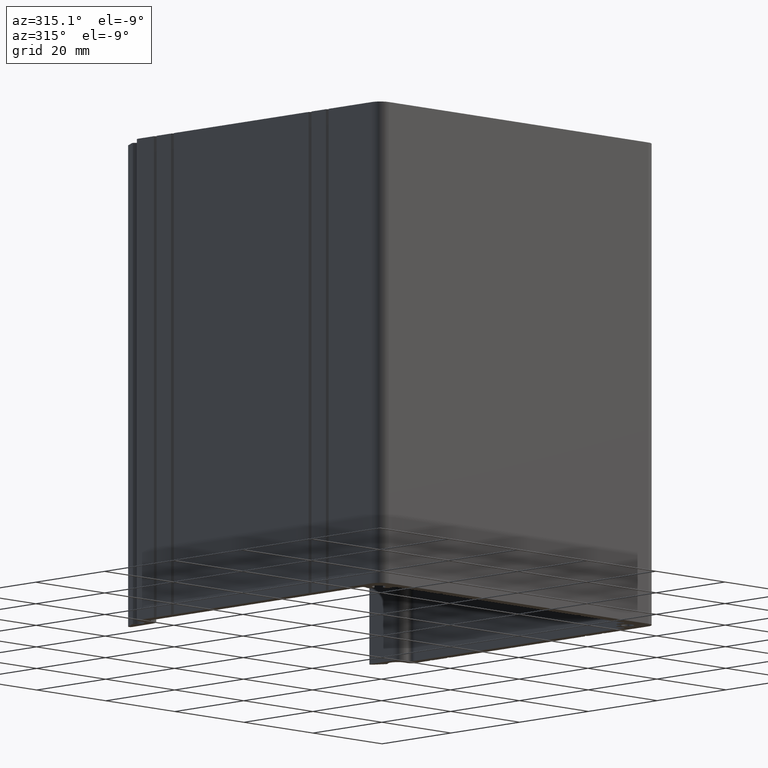
[diagram: clean part render]
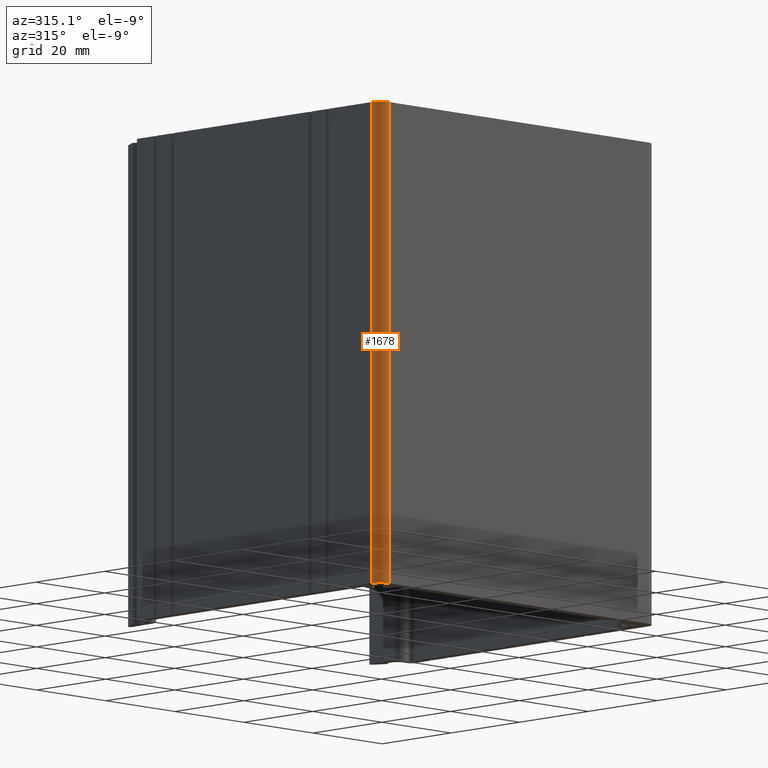
[diagram: same view with one face highlighted and labeled with its STEP entity id]
A machine part, auxiliary view. The second image highlights one B-rep face of the part: STEP entity #1678.
In plain terms, the highlighted cylindrical surface (edge-blend (fillet) strip) has radius 2.5 mm, axis along (0, 0, 1).
Its self-contained STEP definition (entity closure, byte-faithful):
#15=CIRCLE('',#1790,2.5);
#16=CIRCLE('',#1791,2.5);
#79=CYLINDRICAL_SURFACE('',#1789,2.5);
#112=FACE_OUTER_BOUND('',#200,.T.);
#200=EDGE_LOOP('',(#1109,#1110,#1111,#1112));
#290=LINE('',#2449,#484);
#291=LINE('',#2455,#485);
#484=VECTOR('',#1947,10.);
#485=VECTOR('',#1954,10.);
#675=VERTEX_POINT('',#2442);
#678=VERTEX_POINT('',#2447);
#679=VERTEX_POINT('',#2451);
#680=VERTEX_POINT('',#2453);
#850=EDGE_CURVE('',#675,#678,#290,.T.);
#851=EDGE_CURVE('',#679,#675,#15,.T.);
#852=EDGE_CURVE('',#680,#678,#16,.T.);
#853=EDGE_CURVE('',#679,#680,#291,.T.);
#1109=ORIENTED_EDGE('',*,*,#851,.T.);
#1110=ORIENTED_EDGE('',*,*,#850,.T.);
#1111=ORIENTED_EDGE('',*,*,#852,.F.);
#1112=ORIENTED_EDGE('',*,*,#853,.F.);
#1678=ADVANCED_FACE('',(#112),#79,.T.);
#1789=AXIS2_PLACEMENT_3D('',#2450,#1948,#1949);
#1790=AXIS2_PLACEMENT_3D('',#2452,#1950,#1951);
#1791=AXIS2_PLACEMENT_3D('',#2454,#1952,#1953);
#1947=DIRECTION('',(0.,0.,1.));
#1948=DIRECTION('center_axis',(0.,0.,1.));
#1949=DIRECTION('ref_axis',(-1.,-3.5527136788005E-14,0.));
#1950=DIRECTION('center_axis',(0.,0.,1.));
#1951=DIRECTION('ref_axis',(-1.,-3.5527136788005E-14,0.));
#1952=DIRECTION('center_axis',(0.,0.,1.));
#1953=DIRECTION('ref_axis',(-1.,-3.5527136788005E-14,0.));
#1954=DIRECTION('',(0.,0.,1.));
#2442=CARTESIAN_POINT('',(-37.5357959715203,8.88178419700125E-15,0.));
#2447=CARTESIAN_POINT('',(-37.5357959715203,8.88178419700125E-15,100.));
#2449=CARTESIAN_POINT('',(-37.5357959715203,8.88178419700125E-15,0.));
#2450=CARTESIAN_POINT('Origin',(-37.5357959715203,2.50000000000001,0.));
#2451=CARTESIAN_POINT('',(-40.0357959715203,2.49999999999992,0.));
#2452=CARTESIAN_POINT('Origin',(-37.5357959715203,2.50000000000001,0.));
#2453=CARTESIAN_POINT('',(-40.0357959715203,2.49999999999992,100.));
#2454=CARTESIAN_POINT('Origin',(-37.5357959715203,2.50000000000001,100.));
#2455=CARTESIAN_POINT('',(-40.0357959715203,2.49999999999992,0.));